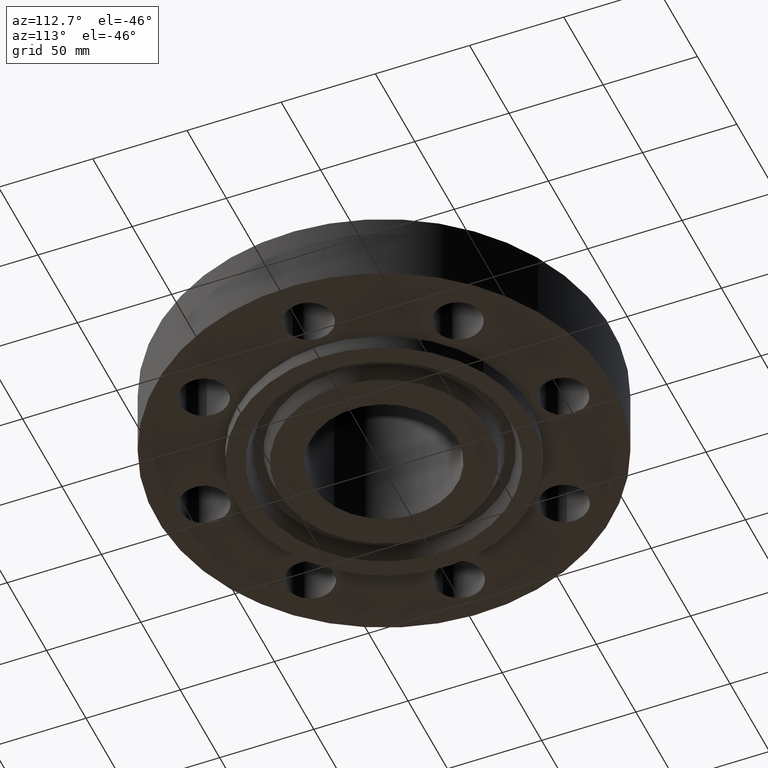
[diagram: clean part render]
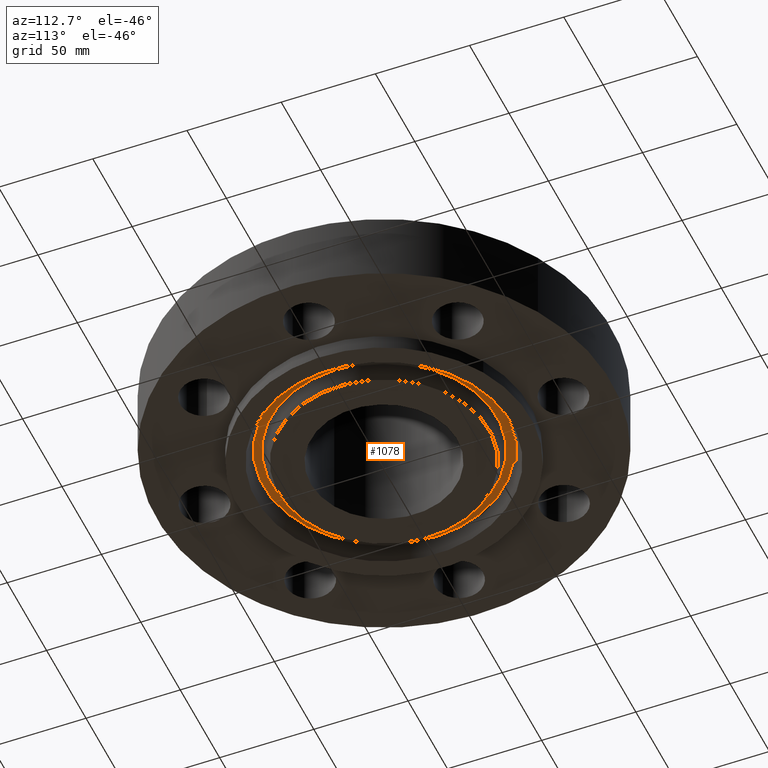
[diagram: same view with one face highlighted and labeled with its STEP entity id]
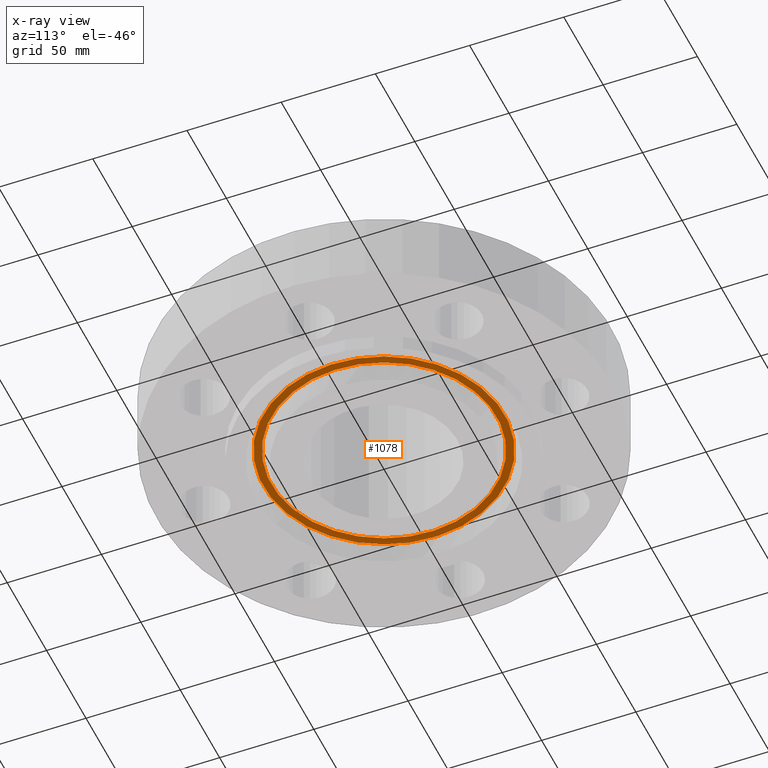
[diagram: x-ray of the same camera — body ghosted, the highlighted face saturated]
A machine part, auxiliary view. The second image highlights one B-rep face of the part: STEP entity #1078.
The next image is the same camera in x-ray: the body ghosted, the highlighted face saturated — about 0% of this face is hidden behind the body in this view.
In plain terms, the highlighted planar face has unit normal (0, 0, -1).
Its self-contained STEP definition (entity closure, byte-faithful):
#484=AXIS2_PLACEMENT_3D('Plane Axis2P3D',#481,#482,#483) ;
#1000=AXIS2_PLACEMENT_3D('Circle Axis2P3D',#998,#999,$) ;
#1046=AXIS2_PLACEMENT_3D('Circle Axis2P3D',#1044,#1045,$) ;
#1062=AXIS2_PLACEMENT_3D('Circle Axis2P3D',#1060,#1061,$) ;
#1071=AXIS2_PLACEMENT_3D('Circle Axis2P3D',#1069,#1070,$) ;
#481=CARTESIAN_POINT('Axis2P3D Location',(0.,3.06250000001,0.)) ;
#995=CARTESIAN_POINT('Vertex',(-1.207449808,2.21022204813,-2.44773580232E-016)) ;
#998=CARTESIAN_POINT('Axis2P3D Location',(0.,0.,-2.44773580232E-016)) ;
#1002=CARTESIAN_POINT('Vertex',(1.207449808,-2.21022204813,-2.44773580232E-016)) ;
#1044=CARTESIAN_POINT('Axis2P3D Location',(0.,0.,-2.44773580232E-016)) ;
#1060=CARTESIAN_POINT('Axis2P3D Location',(0.,0.,0.)) ;
#1064=CARTESIAN_POINT('Vertex',(1.12974969271,-2.06799294111,3.49676543189E-016)) ;
#1066=CARTESIAN_POINT('Vertex',(-1.12974969271,2.06799294111,3.49676543189E-016)) ;
#1069=CARTESIAN_POINT('Axis2P3D Location',(0.,0.,0.)) ;
#482=DIRECTION('Axis2P3D Direction',(0.,0.,-0.0393700787402)) ;
#483=DIRECTION('Axis2P3D XDirection',(0.0393700787402,0.,0.)) ;
#999=DIRECTION('Axis2P3D Direction',(0.,0.,0.0393700787402)) ;
#1045=DIRECTION('Axis2P3D Direction',(0.,0.,0.0393700787402)) ;
#1061=DIRECTION('Axis2P3D Direction',(0.,0.,-0.0393700787402)) ;
#1070=DIRECTION('Axis2P3D Direction',(0.,0.,-0.0393700787402)) ;
#1057=ORIENTED_EDGE('',*,*,#1004,.F.) ;
#1058=ORIENTED_EDGE('',*,*,#1048,.F.) ;
#1075=ORIENTED_EDGE('',*,*,#1068,.T.) ;
#1076=ORIENTED_EDGE('',*,*,#1073,.T.) ;
#1077=FACE_BOUND('',#1074,.T.) ;
#1078=ADVANCED_FACE('PartBody',(#1059,#1077),#485,.T.) ;
#1001=CIRCLE('generated circle',#1000,2.51853460188) ;
#1047=CIRCLE('generated circle',#1046,2.51853460188) ;
#1063=CIRCLE('generated circle',#1062,2.35646539814) ;
#1072=CIRCLE('generated circle',#1071,2.35646539814) ;
#1004=EDGE_CURVE('',#996,#1003,#1001,.T.) ;
#1048=EDGE_CURVE('',#1003,#996,#1047,.T.) ;
#1068=EDGE_CURVE('',#1065,#1067,#1063,.F.) ;
#1073=EDGE_CURVE('',#1067,#1065,#1072,.F.) ;
#1056=EDGE_LOOP('',(#1057,#1058)) ;
#1074=EDGE_LOOP('',(#1075,#1076)) ;
#1059=FACE_OUTER_BOUND('',#1056,.T.) ;
#485=PLANE('',#484) ;
#996=VERTEX_POINT('',#995) ;
#1003=VERTEX_POINT('',#1002) ;
#1065=VERTEX_POINT('',#1064) ;
#1067=VERTEX_POINT('',#1066) ;